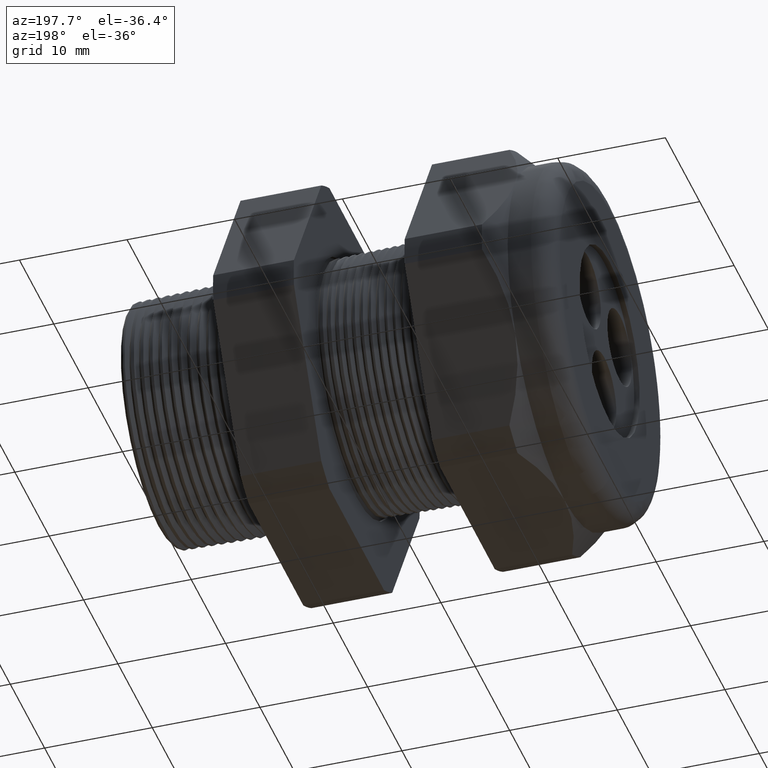
[diagram: clean part render]
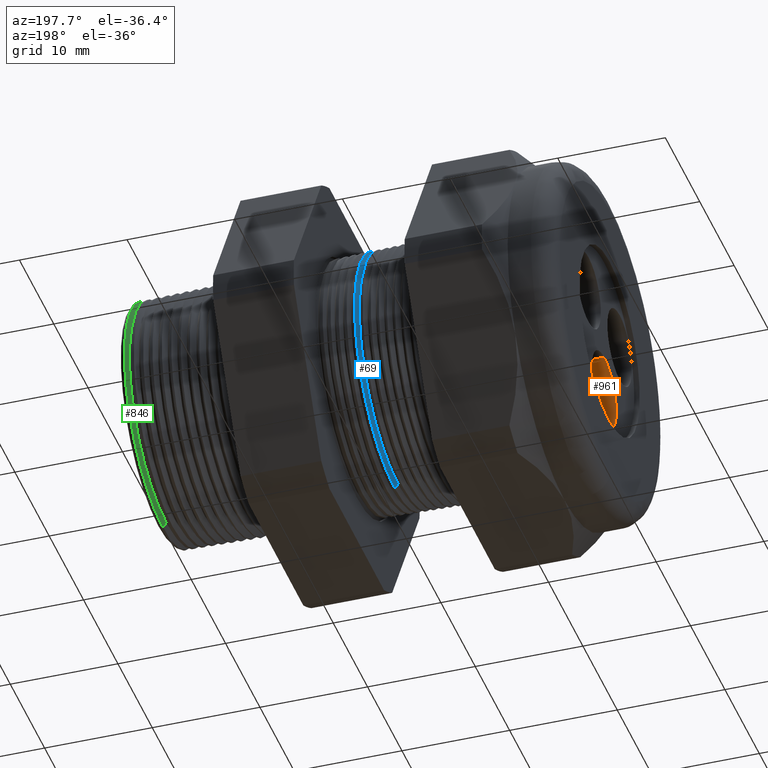
[diagram: same view with three faces highlighted in distinct colors, each labeled with its STEP entity id]
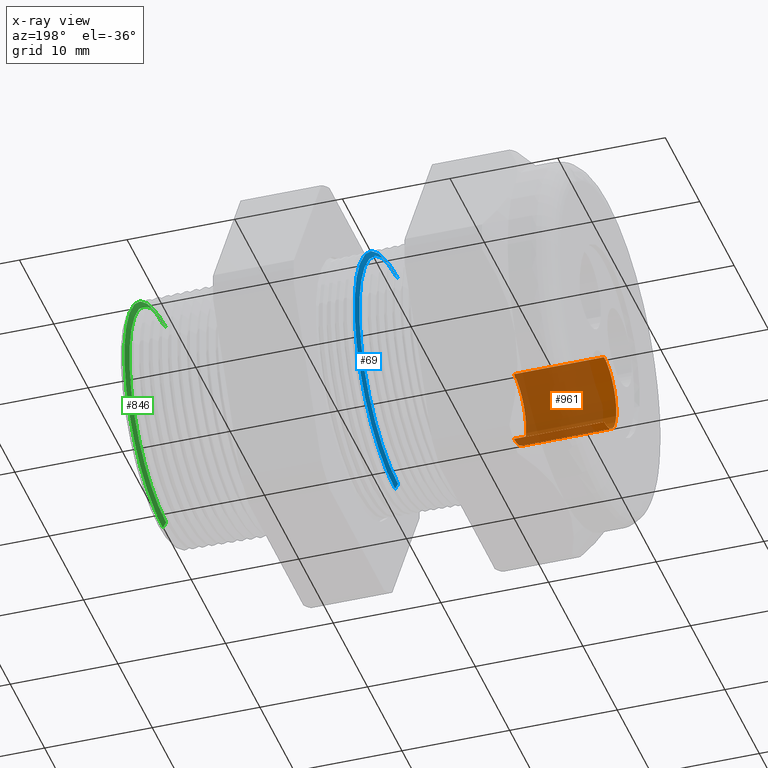
[diagram: x-ray of the same camera — body ghosted, the three highlighted faces saturated]
A machine part, auxiliary view with three faces highlighted in distinct colors.
The next image is the same camera in x-ray (body ghosted, the three faces saturated) — at least one of them is partly hidden behind the body in this view.
Their STEP definitions:

[orange] entity #961 — the highlighted cylindrical surface (partial cylindrical patch) has radius 3.556 mm, axis along (-1, 0, 0).
#961 = ADVANCED_FACE ( 'NONE', ( #3460 ), #3458, .F. ) ;
#962 = EDGE_LOOP ( 'NONE', ( #963, #1030, #979, #982 ) ) ;
#963 = ORIENTED_EDGE ( 'NONE', *, *, #1027, .F. ) ;
#979 = ORIENTED_EDGE ( 'NONE', *, *, #980, .T. ) ;
#980 = EDGE_CURVE ( 'NONE', #1032, #981, #3495, .T. ) ;
#981 = VERTEX_POINT ( 'NONE', #3490 ) ;
#982 = ORIENTED_EDGE ( 'NONE', *, *, #990, .F. ) ;
#990 = EDGE_CURVE ( 'NONE', #1029, #981, #3540, .T. ) ;
#1027 = EDGE_CURVE ( 'NONE', #1028, #1029, #3593, .T. ) ;
#1028 = VERTEX_POINT ( 'NONE', #3588 ) ;
#1029 = VERTEX_POINT ( 'NONE', #3587 ) ;
#1030 = ORIENTED_EDGE ( 'NONE', *, *, #1031, .T. ) ;
#1031 = EDGE_CURVE ( 'NONE', #1028, #1032, #3586, .T. ) ;
#1032 = VERTEX_POINT ( 'NONE', #3582 ) ;
#3454 = DIRECTION ( 'NONE',  ( 0.0000000000000000000, 0.0000000000000000000, 1.000000000000000000 ) ) ;
#3455 = DIRECTION ( 'NONE',  ( -1.000000000000000000, 0.0000000000000000000, 0.0000000000000000000 ) ) ;
#3456 = CARTESIAN_POINT ( 'NONE',  ( 0.1200000000000000900, 0.0000000000000000000, -0.2044399999999999300 ) ) ;
#3457 = AXIS2_PLACEMENT_3D ( 'NONE', #3456, #3455, #3454 ) ;
#3458 = CYLINDRICAL_SURFACE ( 'NONE', #3457, 0.1400000000000000100 ) ;
#3460 = FACE_OUTER_BOUND ( 'NONE', #962, .T. ) ;
#3490 = CARTESIAN_POINT ( 'NONE',  ( -1.509999999999999800, 0.0000000000000000000, -0.06443999999999991400 ) ) ;
#3491 = DIRECTION ( 'NONE',  ( 0.0000000000000000000, 0.0000000000000000000, 1.000000000000000000 ) ) ;
#3492 = DIRECTION ( 'NONE',  ( -1.000000000000000000, 0.0000000000000000000, 0.0000000000000000000 ) ) ;
#3493 = CARTESIAN_POINT ( 'NONE',  ( -1.509999999999999800, 0.0000000000000000000, -0.2044399999999999300 ) ) ;
#3494 = AXIS2_PLACEMENT_3D ( 'NONE', #3493, #3492, #3491 ) ;
#3495 = CIRCLE ( 'NONE', #3494, 0.1400000000000000100 ) ;
#3537 = DIRECTION ( 'NONE',  ( -1.000000000000000000, 0.0000000000000000000, 0.0000000000000000000 ) ) ;
#3538 = VECTOR ( 'NONE', #3537, 39.37007874015748100 ) ;
#3539 = CARTESIAN_POINT ( 'NONE',  ( 0.1200000000000000900, 0.0000000000000000000, -0.06443999999999991400 ) ) ;
#3540 = LINE ( 'NONE', #3539, #3538 ) ;
#3582 = CARTESIAN_POINT ( 'NONE',  ( -1.509999999999999800, 1.714505518806294400E-017, -0.3444399999999999100 ) ) ;
#3583 = DIRECTION ( 'NONE',  ( -1.000000000000000000, 0.0000000000000000000, 0.0000000000000000000 ) ) ;
#3584 = VECTOR ( 'NONE', #3583, 39.37007874015748100 ) ;
#3585 = CARTESIAN_POINT ( 'NONE',  ( 0.1200000000000000900, 1.714505518806294400E-017, -0.3444399999999999100 ) ) ;
#3586 = LINE ( 'NONE', #3585, #3584 ) ;
#3587 = CARTESIAN_POINT ( 'NONE',  ( -1.179999999999999700, 0.0000000000000000000, -0.06443999999999991400 ) ) ;
#3588 = CARTESIAN_POINT ( 'NONE',  ( -1.179999999999999700, 1.714505518806294400E-017, -0.3444399999999999100 ) ) ;
#3589 = DIRECTION ( 'NONE',  ( 0.0000000000000000000, 0.0000000000000000000, 1.000000000000000000 ) ) ;
#3590 = DIRECTION ( 'NONE',  ( -1.000000000000000000, 0.0000000000000000000, 0.0000000000000000000 ) ) ;
#3591 = CARTESIAN_POINT ( 'NONE',  ( -1.179999999999999700, 0.0000000000000000000, -0.2044399999999999300 ) ) ;
#3592 = AXIS2_PLACEMENT_3D ( 'NONE', #3591, #3590, #3589 ) ;
#3593 = CIRCLE ( 'NONE', #3592, 0.1400000000000000100 ) ;

[blue] entity #69 — the highlighted conical surface has half-angle 58.5 deg.
#69 = ADVANCED_FACE ( 'NONE', ( #1792 ), #1790, .T. ) ;
#71 = EDGE_LOOP ( 'NONE', ( #73, #79, #90, #95 ) ) ;
#73 = ORIENTED_EDGE ( 'NONE', *, *, #75, .T. ) ;
#75 = EDGE_CURVE ( 'NONE', #76, #77, #1782, .T. ) ;
#76 = VERTEX_POINT ( 'NONE', #1777 ) ;
#77 = VERTEX_POINT ( 'NONE', #1776 ) ;
#79 = ORIENTED_EDGE ( 'NONE', *, *, #81, .T. ) ;
#81 = EDGE_CURVE ( 'NONE', #77, #83, #1775, .T. ) ;
#83 = VERTEX_POINT ( 'NONE', #1833 ) ;
#90 = ORIENTED_EDGE ( 'NONE', *, *, #92, .T. ) ;
#92 = EDGE_CURVE ( 'NONE', #83, #93, #1821, .T. ) ;
#93 = VERTEX_POINT ( 'NONE', #1816 ) ;
#95 = ORIENTED_EDGE ( 'NONE', *, *, #97, .F. ) ;
#97 = EDGE_CURVE ( 'NONE', #76, #93, #1815, .T. ) ;
#1772 = DIRECTION ( 'NONE',  ( 0.5224985647159348100, 1.044183048100722500E-016, 0.8526401643541007300 ) ) ;
#1773 = VECTOR ( 'NONE', #1772, 39.37007874015748900 ) ;
#1774 = CARTESIAN_POINT ( 'NONE',  ( -0.7565405736958171800, 5.445156066306895900E-017, 0.4446307351718083400 ) ) ;
#1775 = LINE ( 'NONE', #1774, #1773 ) ;
#1776 = CARTESIAN_POINT ( 'NONE',  ( -0.7565405736958171800, 0.0000000000000000000, 0.4446307351718083400 ) ) ;
#1777 = CARTESIAN_POINT ( 'NONE',  ( -0.7565405736958171800, 5.561460781771862500E-017, -0.4446307351718083400 ) ) ;
#1778 = DIRECTION ( 'NONE',  ( 0.0000000000000000000, 0.0000000000000000000, -1.000000000000000000 ) ) ;
#1779 = DIRECTION ( 'NONE',  ( 1.000000000000000000, 0.0000000000000000000, 0.0000000000000000000 ) ) ;
#1780 = CARTESIAN_POINT ( 'NONE',  ( -0.7565405736958171800, 0.0000000000000000000, 0.0000000000000000000 ) ) ;
#1781 = AXIS2_PLACEMENT_3D ( 'NONE', #1780, #1779, #1778 ) ;
#1782 = CIRCLE ( 'NONE', #1781, 0.4446307351718083400 ) ;
#1786 = DIRECTION ( 'NONE',  ( 0.0000000000000000000, 0.0000000000000000000, -1.000000000000000000 ) ) ;
#1787 = DIRECTION ( 'NONE',  ( 1.000000000000000000, 0.0000000000000000000, 0.0000000000000000000 ) ) ;
#1788 = CARTESIAN_POINT ( 'NONE',  ( -0.7565405736958171800, 0.0000000000000000000, 0.0000000000000000000 ) ) ;
#1789 = AXIS2_PLACEMENT_3D ( 'NONE', #1788, #1787, #1786 ) ;
#1790 = CONICAL_SURFACE ( 'NONE', #1789, 0.4446307351718083400, 1.021017612416699200 ) ;
#1792 = FACE_OUTER_BOUND ( 'NONE', #71, .T. ) ;
#1812 = DIRECTION ( 'NONE',  ( 0.5224985647159348100, 0.0000000000000000000, -0.8526401643541007300 ) ) ;
#1813 = VECTOR ( 'NONE', #1812, 39.37007874015748900 ) ;
#1814 = CARTESIAN_POINT ( 'NONE',  ( -0.7565405736958171800, 0.0000000000000000000, -0.4446307351718083400 ) ) ;
#1815 = LINE ( 'NONE', #1814, #1813 ) ;
#1816 = CARTESIAN_POINT ( 'NONE',  ( -0.7452477365867903300, 5.670836859910992700E-017, -0.4630589704606462600 ) ) ;
#1817 = DIRECTION ( 'NONE',  ( 0.0000000000000000000, 0.0000000000000000000, -1.000000000000000000 ) ) ;
#1818 = DIRECTION ( 'NONE',  ( -1.000000000000000000, 0.0000000000000000000, 0.0000000000000000000 ) ) ;
#1819 = CARTESIAN_POINT ( 'NONE',  ( -0.7452477365867903300, 0.0000000000000000000, 0.0000000000000000000 ) ) ;
#1820 = AXIS2_PLACEMENT_3D ( 'NONE', #1819, #1818, #1817 ) ;
#1821 = CIRCLE ( 'NONE', #1820, 0.4630589704606462600 ) ;
#1833 = CARTESIAN_POINT ( 'NONE',  ( -0.7452477365867903300, 0.0000000000000000000, 0.4630589704606462600 ) ) ;

[green] entity #846 — the highlighted conical surface has half-angle 58.5 deg.
#830 = EDGE_CURVE ( 'NONE', #850, #857, #3216, .T. ) ;
#846 = ADVANCED_FACE ( 'NONE', ( #3260 ), #3259, .T. ) ;
#847 = EDGE_LOOP ( 'NONE', ( #848, #852, #855, #910 ) ) ;
#848 = ORIENTED_EDGE ( 'NONE', *, *, #849, .T. ) ;
#849 = EDGE_CURVE ( 'NONE', #850, #851, #3253, .T. ) ;
#850 = VERTEX_POINT ( 'NONE', #3249 ) ;
#851 = VERTEX_POINT ( 'NONE', #3248 ) ;
#852 = ORIENTED_EDGE ( 'NONE', *, *, #853, .T. ) ;
#853 = EDGE_CURVE ( 'NONE', #851, #854, #3247, .T. ) ;
#854 = VERTEX_POINT ( 'NONE', #3243 ) ;
#855 = ORIENTED_EDGE ( 'NONE', *, *, #856, .T. ) ;
#856 = EDGE_CURVE ( 'NONE', #854, #857, #3242, .T. ) ;
#857 = VERTEX_POINT ( 'NONE', #3237 ) ;
#910 = ORIENTED_EDGE ( 'NONE', *, *, #830, .F. ) ;
#3213 = DIRECTION ( 'NONE',  ( 0.5224985647159347000, 0.0000000000000000000, -0.8526401643541008400 ) ) ;
#3214 = VECTOR ( 'NONE', #3213, 39.37007874015748100 ) ;
#3215 = CARTESIAN_POINT ( 'NONE',  ( 0.09152926432092477200, 0.0000000000000000000, -0.4212184895733915900 ) ) ;
#3216 = LINE ( 'NONE', #3215, #3214 ) ;
#3237 = CARTESIAN_POINT ( 'NONE',  ( 0.1035487166337340900, 5.398640526594968500E-017, -0.4408324531084156200 ) ) ;
#3238 = DIRECTION ( 'NONE',  ( 0.0000000000000000000, 0.0000000000000000000, -1.000000000000000000 ) ) ;
#3239 = DIRECTION ( 'NONE',  ( -1.000000000000000000, 0.0000000000000000000, 0.0000000000000000000 ) ) ;
#3240 = CARTESIAN_POINT ( 'NONE',  ( 0.1035487166337340900, 0.0000000000000000000, 0.0000000000000000000 ) ) ;
#3241 = AXIS2_PLACEMENT_3D ( 'NONE', #3240, #3239, #3238 ) ;
#3242 = CIRCLE ( 'NONE', #3241, 0.4408324531084156800 ) ;
#3243 = CARTESIAN_POINT ( 'NONE',  ( 0.1035487166337340900, 0.0000000000000000000, 0.4408324531084156200 ) ) ;
#3244 = DIRECTION ( 'NONE',  ( 0.5224985647159347000, 1.044183048100722800E-016, 0.8526401643541008400 ) ) ;
#3245 = VECTOR ( 'NONE', #3244, 39.37007874015748100 ) ;
#3246 = CARTESIAN_POINT ( 'NONE',  ( 0.09152926432092477200, 5.158438749977368000E-017, 0.4212184895733915900 ) ) ;
#3247 = LINE ( 'NONE', #3246, #3245 ) ;
#3248 = CARTESIAN_POINT ( 'NONE',  ( 0.09152926432092477200, 0.0000000000000000000, 0.4212184895733915900 ) ) ;
#3249 = CARTESIAN_POINT ( 'NONE',  ( 0.09152926432092477200, 5.282226861661775800E-017, -0.4212184895733915900 ) ) ;
#3250 = DIRECTION ( 'NONE',  ( 0.0000000000000000000, 0.0000000000000000000, -1.000000000000000000 ) ) ;
#3251 = DIRECTION ( 'NONE',  ( 1.000000000000000000, 0.0000000000000000000, 0.0000000000000000000 ) ) ;
#3252 = AXIS2_PLACEMENT_3D ( 'NONE', #3258, #3251, #3250 ) ;
#3253 = CIRCLE ( 'NONE', #3252, 0.4212184895733915900 ) ;
#3254 = DIRECTION ( 'NONE',  ( 0.0000000000000000000, 0.0000000000000000000, -1.000000000000000000 ) ) ;
#3255 = DIRECTION ( 'NONE',  ( 1.000000000000000000, 0.0000000000000000000, 0.0000000000000000000 ) ) ;
#3256 = CARTESIAN_POINT ( 'NONE',  ( 0.09152926432092477200, 0.0000000000000000000, 0.0000000000000000000 ) ) ;
#3257 = AXIS2_PLACEMENT_3D ( 'NONE', #3256, #3255, #3254 ) ;
#3258 = CARTESIAN_POINT ( 'NONE',  ( 0.09152926432092477200, 0.0000000000000000000, 0.0000000000000000000 ) ) ;
#3259 = CONICAL_SURFACE ( 'NONE', #3257, 0.4212184895733915900, 1.021017612416699400 ) ;
#3260 = FACE_OUTER_BOUND ( 'NONE', #847, .T. ) ;